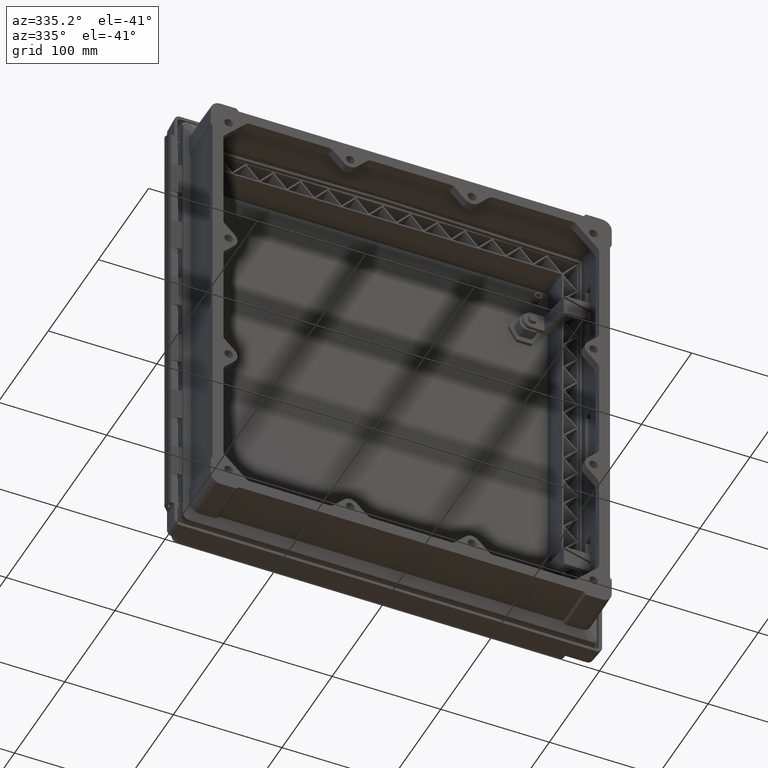
[diagram: clean part render]
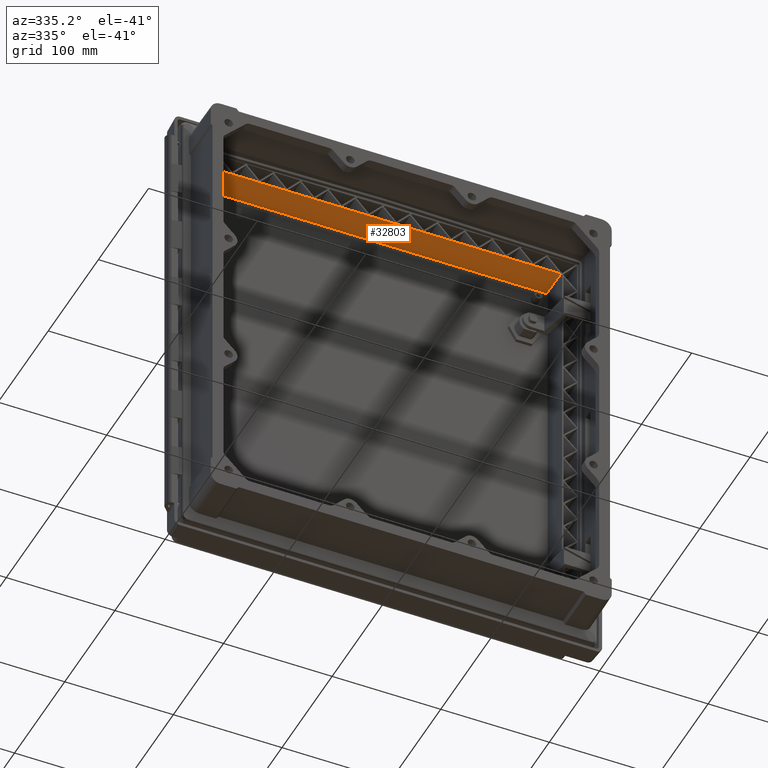
[diagram: same view with one face highlighted and labeled with its STEP entity id]
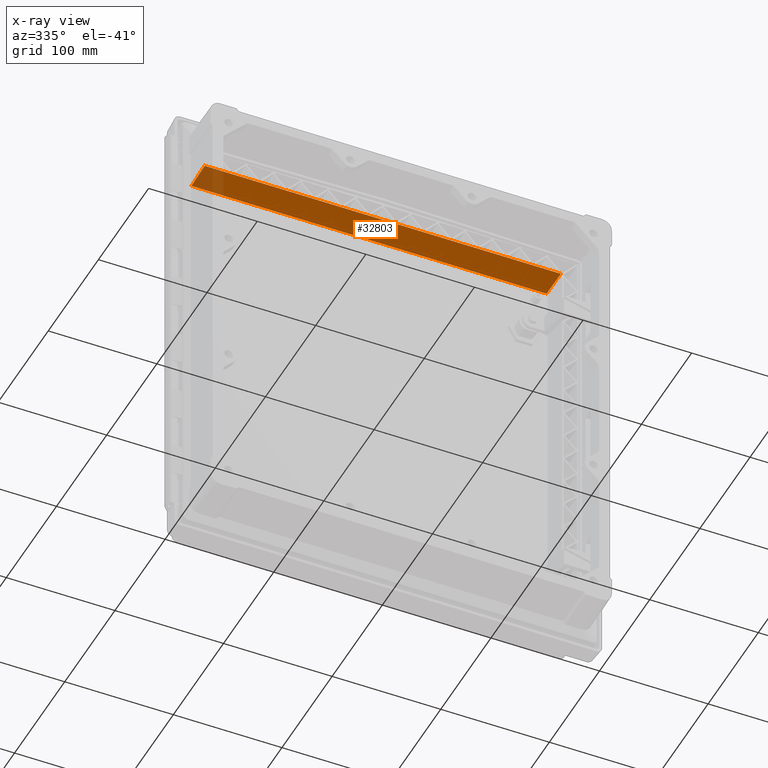
[diagram: x-ray of the same camera — body ghosted, the highlighted face saturated]
A machine part, auxiliary view. The second image highlights one B-rep face of the part: STEP entity #32803.
The next image is the same camera in x-ray: the body ghosted, the highlighted face saturated — about 7% of this face is hidden behind the body in this view.
In plain terms, the highlighted planar face has unit normal (0, -0.0175, -0.9998).
Its self-contained STEP definition (entity closure, byte-faithful):
#16312=DIRECTION('',(1.E0,0.E0,0.E0));
#16313=VECTOR('',#16312,3.280203046097E2);
#16314=CARTESIAN_POINT('',(-1.640101523048E2,3.E0,1.905E2));
#16315=LINE('',#16314,#16313);
#18120=DIRECTION('',(1.E0,0.E0,0.E0));
#18121=VECTOR('',#18120,3.270637670516E2);
#18122=CARTESIAN_POINT('',(-1.635318835258E2,3.04E1,1.900217312210E2));
#18123=LINE('',#18122,#18121);
#18124=DIRECTION('',(1.744974916068E-2,9.996954598819E-1,-1.744974916068E-2));
#18125=VECTOR('',#18124,2.740834694121E1);
#18126=CARTESIAN_POINT('',(-1.640101523048E2,3.E0,1.905E2));
#18127=LINE('',#18126,#18125);
#18128=DIRECTION('',(1.744974916068E-2,-9.996954598819E-1,1.744974916068E-2));
#18129=VECTOR('',#18128,2.740834694121E1);
#18130=CARTESIAN_POINT('',(1.635318835258E2,3.04E1,1.900217312210E2));
#18131=LINE('',#18130,#18129);
#27112=CARTESIAN_POINT('',(-1.640101523048E2,3.E0,1.905E2));
#27113=CARTESIAN_POINT('',(1.640101523048E2,3.E0,1.905E2));
#27114=VERTEX_POINT('',#27112);
#27115=VERTEX_POINT('',#27113);
#28251=CARTESIAN_POINT('',(-1.635318835258E2,3.04E1,1.900217312210E2));
#28252=CARTESIAN_POINT('',(1.635318835258E2,3.04E1,1.900217312210E2));
#28253=VERTEX_POINT('',#28251);
#28254=VERTEX_POINT('',#28252);
#32791=CARTESIAN_POINT('',(-1.6501E2,3.E0,1.905E2));
#32792=DIRECTION('',(0.E0,-1.745240643728E-2,-9.998476951564E-1));
#32793=DIRECTION('',(0.E0,9.998476951564E-1,-1.745240643728E-2));
#32794=AXIS2_PLACEMENT_3D('',#32791,#32792,#32793);
#32795=PLANE('',#32794);
#32796=ORIENTED_EDGE('',*,*,#32689,.F.);
#32797=ORIENTED_EDGE('',*,*,#32785,.F.);
#32798=ORIENTED_EDGE('',*,*,#30282,.T.);
#32800=ORIENTED_EDGE('',*,*,#32799,.F.);
#32801=EDGE_LOOP('',(#32796,#32797,#32798,#32800));
#32802=FACE_OUTER_BOUND('',#32801,.F.);
#32803=ADVANCED_FACE('',(#32802),#32795,.T.);
#30282=EDGE_CURVE('',#27114,#27115,#16315,.T.);
#32689=EDGE_CURVE('',#28253,#28254,#18123,.T.);
#32785=EDGE_CURVE('',#27114,#28253,#18127,.T.);
#32799=EDGE_CURVE('',#28254,#27115,#18131,.T.);